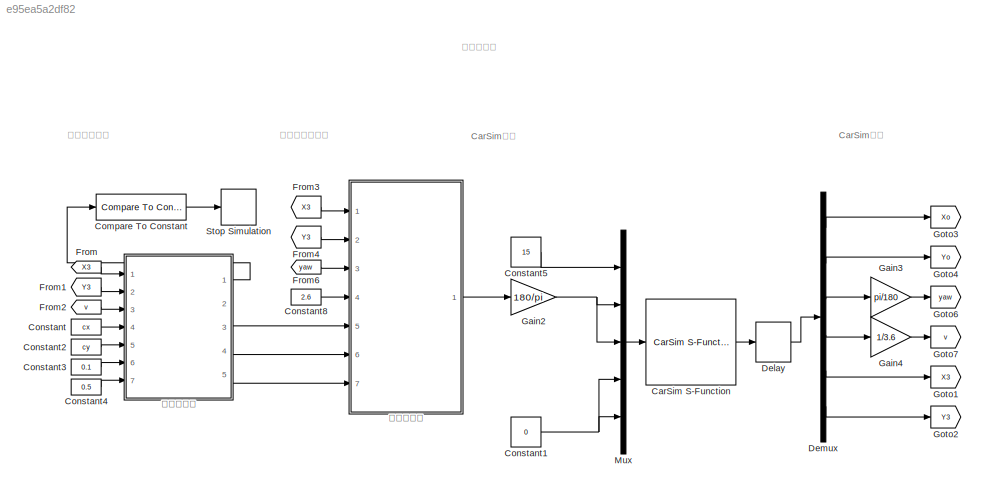
MODEL slx_e95ea5a2df82
KIND model
CONFIG AbsTol = auto
CONFIG EnableMultiTasking = off
CONFIG FixedStep = auto
CONFIG MaxStep = auto
CONFIG MinStep = auto
CONFIG RelTol = 1e-3
CONFIG SampleTimeConstraint = Unconstrained
CONFIG SolverName = VariableStepAuto
CONFIG StartTime = 0.0
CONFIG StopTime = 70
BLOCK [Reference] CarSim S-Function  REF=Solver_SF/CarSim S-Function
  Ports = [1, 1]
  Priority = 1
  SourceBlock = Solver_SF/CarSim S-Function
  SourceProductName = CarSim S-Function
  SourceType = Vehicle math model library
BLOCK [Reference] Compare To Constant  REF=simulink/Logic and Bit
Operations/Compare
To Constant
  Ports = [1, 1]
  SourceBlock = simulink/Logic and Bit\nOperations/Compare\nTo Constant
  SourceProductBaseCode = SL
  SourceType = Compare To Constant
BLOCK [Constant] Constant
  Value = cx
BLOCK [Constant] Constant1
  Value = 0
BLOCK [Constant] Constant2
  Value = cy
BLOCK [Constant] Constant3
  Value = 0.1
BLOCK [Constant] Constant4
  Value = 0.5
BLOCK [Constant] Constant5
  Value = 15
BLOCK [Constant] Constant8
  Value = 2.6
BLOCK [Delay] Delay
  DelayLength = 1
  InitialCondition = 0
  InputPortMap = u0
  Ports = [1, 1]
  UseCircularBuffer = on
  UserDataPersistent = on
BLOCK [Demux] Demux
  Outputs = 6
  Ports = [1, 6]
BLOCK [From] From
  GotoTag = X3
BLOCK [From] From1
  GotoTag = Y3
BLOCK [From] From2
  GotoTag = v
BLOCK [From] From3
  GotoTag = X3
BLOCK [From] From4
  GotoTag = Y3
BLOCK [From] From6
  GotoTag = yaw
BLOCK [Gain] Gain2
  Gain = 180/pi
BLOCK [Gain] Gain3
  Gain = pi/180
BLOCK [Gain] Gain4
  Gain = 1/3.6
BLOCK [Goto] Goto1
  GotoTag = X3
BLOCK [Goto] Goto2
  GotoTag = Y3
BLOCK [Goto] Goto3
  GotoTag = Xo
BLOCK [Goto] Goto4
  GotoTag = Yo
BLOCK [Goto] Goto6
  GotoTag = yaw
BLOCK [Goto] Goto7
  GotoTag = v
BLOCK [Mux] Mux
  DisplayOption = bar
  Inputs = 5
  Ports = [5, 1]
BLOCK [Stop] Stop Simulation
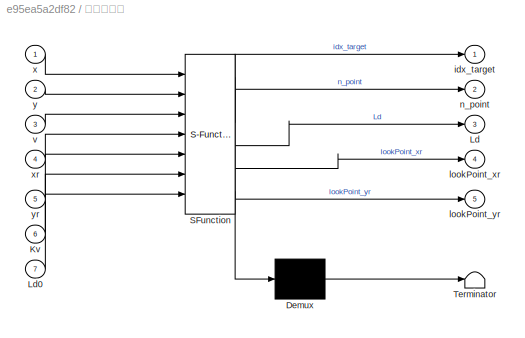
BLOCK [SubSystem] 寻找最近点
  ErrorFcn = Stateflow.Translate.translate
  PermitHierarchicalResolution = ExplicitOnly
  Ports = [7, 5]
  RequestExecContextInheritance = off
  SFBlockType = MATLAB Function
  TreatAsAtomicUnit = on
BLOCK [Demux] 寻找最近点/ Demux 
  Outputs = 1
  Ports = [1, 1]
BLOCK [S-Function] 寻找最近点/ SFunction 
  EnableBusSupport = on
  FunctionName = sf_sfun
  PortCounts = [7 6]
  Ports = [7, 6]
  SFcnIsStateOwnerBlock = off
  SFunctionDeploymentMode = off
  Tag = Stateflow S-Function 2
BLOCK [Terminator] 寻找最近点/ Terminator 
BLOCK [Inport] 寻找最近点/Kv
  Port = 6
BLOCK [Outport] 寻找最近点/Ld
  Port = 3
BLOCK [Inport] 寻找最近点/Ld0
  Port = 7
BLOCK [Outport] 寻找最近点/idx_target
BLOCK [Outport] 寻找最近点/lookPoint_xr
  Port = 4
BLOCK [Outport] 寻找最近点/lookPoint_yr
  Port = 5
BLOCK [Outport] 寻找最近点/n_point
  Port = 2
BLOCK [Inport] 寻找最近点/v
  Port = 3
BLOCK [Inport] 寻找最近点/x
BLOCK [Inport] 寻找最近点/xr
  Port = 4
BLOCK [Inport] 寻找最近点/y
  Port = 2
BLOCK [Inport] 寻找最近点/yr
  Port = 5
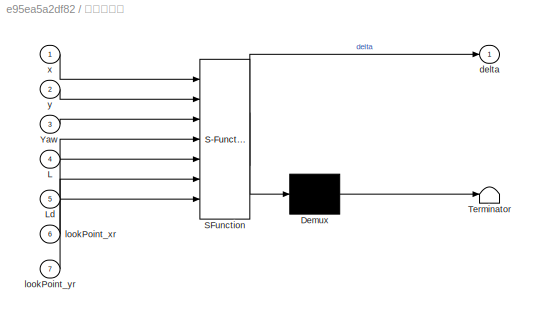
BLOCK [SubSystem] 计算控制量
  ErrorFcn = Stateflow.Translate.translate
  PermitHierarchicalResolution = ExplicitOnly
  Ports = [7, 1]
  RequestExecContextInheritance = off
  SFBlockType = MATLAB Function
  TreatAsAtomicUnit = on
BLOCK [Demux] 计算控制量/ Demux 
  Outputs = 1
  Ports = [1, 1]
BLOCK [S-Function] 计算控制量/ SFunction 
  EnableBusSupport = on
  FunctionName = sf_sfun
  PortCounts = [7 2]
  Ports = [7, 2]
  SFcnIsStateOwnerBlock = off
  SFunctionDeploymentMode = off
  Tag = Stateflow S-Function 1
BLOCK [Terminator] 计算控制量/ Terminator 
BLOCK [Inport] 计算控制量/L
  Port = 4
BLOCK [Inport] 计算控制量/Ld
  Port = 5
BLOCK [Inport] 计算控制量/Yaw
  Port = 3
BLOCK [Outport] 计算控制量/delta
BLOCK [Inport] 计算控制量/lookPoint_xr
  Port = 6
BLOCK [Inport] 计算控制量/lookPoint_yr
  Port = 7
BLOCK [Inport] 计算控制量/x
BLOCK [Inport] 计算控制量/y
  Port = 2
ANNOTATION (root): CarSim输入
ANNOTATION (root): CarSim输出
ANNOTATION (root): 计算：前轮转角
ANNOTATION (root): 计算：预瞄点
ANNOTATION (root): 纯跟踪算法
LINE CarSim S-Function:1 -> Delay:1
LINE Compare To Constant:1 -> Stop Simulation:1
NET Constant1:1 -> Mux:4, Mux:5
LINE Constant2:1 -> 寻找最近点:5
LINE Constant3:1 -> 寻找最近点:6
LINE Constant4:1 -> 寻找最近点:7
LINE Constant5:1 -> Mux:1
LINE Constant8:1 -> 计算控制量:4
LINE Constant:1 -> 寻找最近点:4
LINE Delay:1 -> Demux:1
LINE Demux:1 -> Goto3:1
LINE Demux:2 -> Goto4:1
LINE Demux:3 -> Gain3:1
LINE Demux:4 -> Gain4:1
LINE Demux:5 -> Goto1:1
LINE Demux:6 -> Goto2:1
LINE From1:1 -> 寻找最近点:2
LINE From2:1 -> 寻找最近点:3
LINE From3:1 -> 计算控制量:1
LINE From4:1 -> 计算控制量:2
LINE From6:1 -> 计算控制量:3
LINE From:1 -> 寻找最近点:1
NET Gain2:1 -> Mux:2, Mux:3
LINE Gain3:1 -> Goto6:1
LINE Gain4:1 -> Goto7:1
LINE Mux:1 -> CarSim S-Function:1
LINE 寻找最近点:1 -> Compare To Constant:1
LINE 寻找最近点:3 -> 计算控制量:5
LINE 寻找最近点:4 -> 计算控制量:6
LINE 寻找最近点:5 -> 计算控制量:7
LINE 计算控制量:1 -> Gain2:1
note: NET lines group one-source signal fan-out (src -> all destinations, sorted); 1:1 wires keep LINE
CHART 计算控制量 states=1 transitions=1
  STATE_LABEL 'eML_blk_kernel()'
  STATE_LABEL 'SCRIPT:\n%% 获得控制量：前轮转向\nfunction delta  = control(x,y,Yaw,L,Ld,lookPoint_xr,lookPoint_yr)\n% 公式里的阿发角\nalpha = atan2(lookPoint_yr - y,lookPoint_xr - x)  - Yaw;\n\n% 前轮转角\ndelta = atan2(2*L*sin(alpha), Ld);\n% 对前轮转角进行限制\nif delta < -pi/3\n   delta =  -pi/3;\nend\nif delta > pi/3\n   delta = pi/3;\nend\n\nend\n'
CHART 寻找最近点 states=1 transitions=1
  STATE_LABEL 'eML_blk_kernel()'
  STATE_LABEL 'SCRIPT:\n%% 首先在参考轨迹上搜索离当前车辆位置最近的点\nfunction  [idx_target,n_point,Ld,lookPoint_xr,lookPoint_yr] = findPoint(x,y, v,xr,yr, Kv, Ld0)\n\n% 找到距离当前位置最近的一个参考轨迹点的序号\nn=length(xr);\nd_min=(x-xr(1))^2+(y-yr(1))^2;\nmin=0;\nfor i = 1:n\n    d = (x-xr(i))^2+(y-yr(i))^2; \n    if d<d_min\n        d_min=d;\n        min=i;\n    end\nend\n\n% 从该点开始向轨迹前方搜索，找到与预瞄距离最相近的一个轨迹点\nL_steps = 0;           % 参考轨迹上几个相邻点的累计距离,从匹配点开始\nLd = Kv*v...<+356ch>'
CHART  states=0 transitions=0
CHART  states=0 transitions=0
